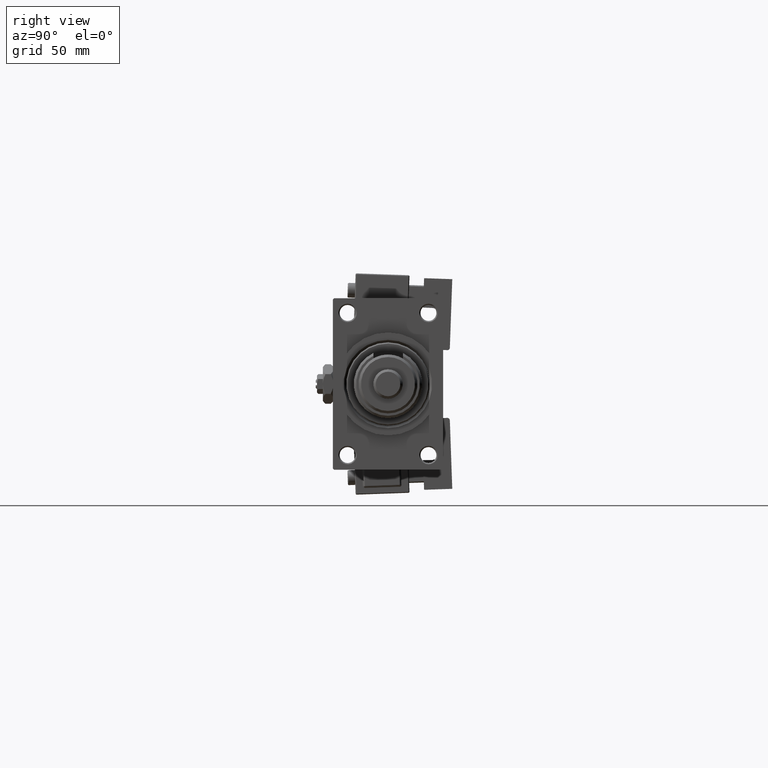
[diagram: clean part render]
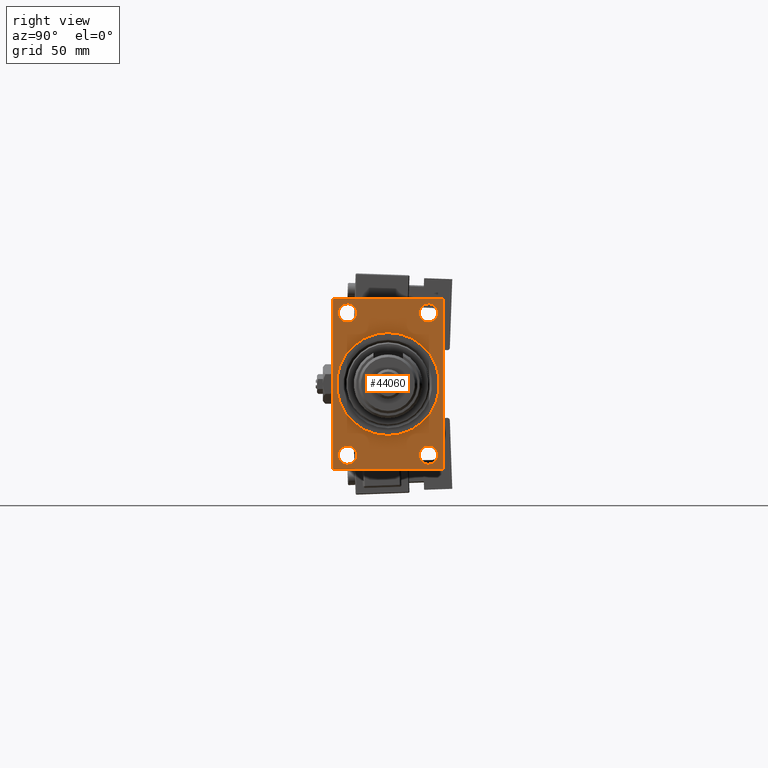
[diagram: same view with one face highlighted and labeled with its STEP entity id]
A machine part, right view. The second image highlights one B-rep face of the part: STEP entity #44060.
In plain terms, the highlighted planar face has unit normal (-1, 0, 0).
Its self-contained STEP definition (entity closure, byte-faithful):
#45 = VERTEX_POINT ( 'NONE', #42692 ) ;
#126 = FACE_OUTER_BOUND ( 'NONE', #37883, .T. ) ;
#403 = FACE_BOUND ( 'NONE', #11445, .T. ) ;
#657 = CARTESIAN_POINT ( 'NONE',  ( 173.0000000000000284, 16.50000000000000000, 32.75000000000017764 ) ) ;
#731 = CARTESIAN_POINT ( 'NONE',  ( 173.0000000000000284, -16.50000000000000000, -32.75000000000017053 ) ) ;
#1024 = CARTESIAN_POINT ( 'NONE',  ( 173.0000000000000284, -22.00000000000000355, -35.00000000000000000 ) ) ;
#1189 = EDGE_CURVE ( 'NONE', #2716, #21656, #5467, .T. ) ;
#1208 = VECTOR ( 'NONE', #15407, 1000.000000000000000 ) ;
#1745 = VECTOR ( 'NONE', #20632, 1000.000000000000114 ) ;
#2084 = VERTEX_POINT ( 'NONE', #47411 ) ;
#2329 = DIRECTION ( 'NONE',  ( 0.000000000000000000, 0.000000000000000000, 1.000000000000000000 ) ) ;
#2448 = DIRECTION ( 'NONE',  ( 0.000000000000000000, 0.000000000000000000, 1.000000000000000000 ) ) ;
#2705 = ORIENTED_EDGE ( 'NONE', *, *, #29073, .T. ) ;
#2716 = VERTEX_POINT ( 'NONE', #24474 ) ;
#3421 = CARTESIAN_POINT ( 'NONE',  ( 173.0000000000000284, 16.50000000000000000, -25.24999999999982592 ) ) ;
#3704 = VERTEX_POINT ( 'NONE', #33260 ) ;
#3827 = DIRECTION ( 'NONE',  ( 1.000000000000000000, 0.000000000000000000, 0.000000000000000000 ) ) ;
#3944 = EDGE_CURVE ( 'NONE', #32693, #45161, #32147, .T. ) ;
#4032 = ORIENTED_EDGE ( 'NONE', *, *, #1189, .F. ) ;
#4407 = DIRECTION ( 'NONE',  ( 0.000000000000000000, 0.000000000000000000, 1.000000000000000000 ) ) ;
#4574 = EDGE_CURVE ( 'NONE', #29594, #3704, #37989, .T. ) ;
#4580 = ORIENTED_EDGE ( 'NONE', *, *, #4574, .T. ) ;
#5189 = CIRCLE ( 'NONE', #16686, 3.750000000000169642 ) ;
#5467 = CIRCLE ( 'NONE', #17707, 21.00000000000000000 ) ;
#7507 = ORIENTED_EDGE ( 'NONE', *, *, #3944, .F. ) ;
#7689 = EDGE_CURVE ( 'NONE', #21656, #2716, #17992, .T. ) ;
#7708 = CARTESIAN_POINT ( 'NONE',  ( 173.0000000000000284, -16.50000000000000000, -28.99999999999999289 ) ) ;
#7754 = CARTESIAN_POINT ( 'NONE',  ( 173.0000000000000284, 21.99999999999999645, 35.00000000000000000 ) ) ;
#7806 = VERTEX_POINT ( 'NONE', #12409 ) ;
#8326 = DIRECTION ( 'NONE',  ( -1.000000000000000000, -0.000000000000000000, -0.000000000000000000 ) ) ;
#8497 = CARTESIAN_POINT ( 'NONE',  ( 173.0000000000000284, 0.000000000000000000, 0.000000000000000000 ) ) ;
#8528 = EDGE_CURVE ( 'NONE', #16770, #52942, #45169, .T. ) ;
#8622 = PLANE ( 'NONE',  #23707 ) ;
#10130 = CARTESIAN_POINT ( 'NONE',  ( 173.0000000000000284, 16.50000000000000000, -28.99999999999999289 ) ) ;
#10559 = VECTOR ( 'NONE', #10877, 1000.000000000000000 ) ;
#10877 = DIRECTION ( 'NONE',  ( 0.000000000000000000, 0.000000000000000000, -1.000000000000000000 ) ) ;
#11194 = EDGE_CURVE ( 'NONE', #32693, #48495, #45574, .T. ) ;
#11445 = EDGE_LOOP ( 'NONE', ( #17897, #48265 ) ) ;
#11610 = DIRECTION ( 'NONE',  ( 0.000000000000000000, 0.000000000000000000, 1.000000000000000000 ) ) ;
#11757 = VECTOR ( 'NONE', #30374, 1000.000000000000114 ) ;
#12177 = FACE_BOUND ( 'NONE', #21536, .T. ) ;
#12409 = CARTESIAN_POINT ( 'NONE',  ( 173.0000000000000284, 16.50000000000000000, -32.75000000000017053 ) ) ;
#12448 = DIRECTION ( 'NONE',  ( 0.000000000000000000, 0.000000000000000000, 1.000000000000000000 ) ) ;
#12914 = EDGE_CURVE ( 'NONE', #26151, #45, #50470, .T. ) ;
#12970 = CARTESIAN_POINT ( 'NONE',  ( 173.0000000000000284, 22.49999999999999645, -34.50000000000000000 ) ) ;
#14213 = ORIENTED_EDGE ( 'NONE', *, *, #40171, .T. ) ;
#14347 = AXIS2_PLACEMENT_3D ( 'NONE', #37105, #8326, #50544 ) ;
#14506 = AXIS2_PLACEMENT_3D ( 'NONE', #22868, #34692, #18758 ) ;
#14624 = CARTESIAN_POINT ( 'NONE',  ( 173.0000000000000284, 22.49999999999999645, 35.00000000000000000 ) ) ;
#14776 = DIRECTION ( 'NONE',  ( -1.000000000000000000, -0.000000000000000000, -0.000000000000000000 ) ) ;
#15407 = DIRECTION ( 'NONE',  ( 0.000000000000000000, -1.000000000000000000, 0.000000000000000000 ) ) ;
#15515 = EDGE_LOOP ( 'NONE', ( #36425, #48120 ) ) ;
#16686 = AXIS2_PLACEMENT_3D ( 'NONE', #23698, #40422, #2329 ) ;
#16770 = VERTEX_POINT ( 'NONE', #657 ) ;
#17074 = DIRECTION ( 'NONE',  ( -0.000000000000000000, 0.7071067811865279218, 0.7071067811865671127 ) ) ;
#17112 = DIRECTION ( 'NONE',  ( -0.000000000000000000, 0.000000000000000000, 1.000000000000000000 ) ) ;
#17317 = ORIENTED_EDGE ( 'NONE', *, *, #8528, .T. ) ;
#17707 = AXIS2_PLACEMENT_3D ( 'NONE', #8497, #3827, #50156 ) ;
#17897 = ORIENTED_EDGE ( 'NONE', *, *, #12914, .T. ) ;
#17992 = CIRCLE ( 'NONE', #14506, 21.00000000000000000 ) ;
#18595 = DIRECTION ( 'NONE',  ( -1.000000000000000000, -0.000000000000000000, -0.000000000000000000 ) ) ;
#18758 = DIRECTION ( 'NONE',  ( 0.000000000000000000, 0.000000000000000000, -1.000000000000000000 ) ) ;
#19811 = DIRECTION ( 'NONE',  ( 0.000000000000000000, 0.000000000000000000, -1.000000000000000000 ) ) ;
#20064 = ORIENTED_EDGE ( 'NONE', *, *, #35857, .T. ) ;
#20134 = FACE_BOUND ( 'NONE', #15515, .T. ) ;
#20632 = DIRECTION ( 'NONE',  ( 0.000000000000000000, -0.7071067811865474617, 0.7071067811865474617 ) ) ;
#20942 = DIRECTION ( 'NONE',  ( -1.000000000000000000, 0.000000000000000000, -0.000000000000000000 ) ) ;
#20953 = CARTESIAN_POINT ( 'NONE',  ( 173.0000000000000284, -22.50000000000000355, -34.50000000000000000 ) ) ;
#21536 = EDGE_LOOP ( 'NONE', ( #26421, #17317 ) ) ;
#21580 = VERTEX_POINT ( 'NONE', #20953 ) ;
#21656 = VERTEX_POINT ( 'NONE', #50837 ) ;
#22254 = EDGE_CURVE ( 'NONE', #22482, #21580, #32787, .T. ) ;
#22448 = CARTESIAN_POINT ( 'NONE',  ( 173.0000000000000284, -16.50000000000000000, 29.00000000000000711 ) ) ;
#22482 = VERTEX_POINT ( 'NONE', #26445 ) ;
#22674 = LINE ( 'NONE', #1024, #11757 ) ;
#22868 = CARTESIAN_POINT ( 'NONE',  ( 173.0000000000000284, 0.000000000000000000, 0.000000000000000000 ) ) ;
#23368 = CARTESIAN_POINT ( 'NONE',  ( 173.0000000000000284, 22.49999999999999645, -35.00000000000000000 ) ) ;
#23698 = CARTESIAN_POINT ( 'NONE',  ( 173.0000000000000284, 16.50000000000000000, 29.00000000000000355 ) ) ;
#23707 = AXIS2_PLACEMENT_3D ( 'NONE', #33853, #20942, #17112 ) ;
#23822 = AXIS2_PLACEMENT_3D ( 'NONE', #10130, #14776, #2448 ) ;
#24137 = VECTOR ( 'NONE', #17074, 1000.000000000000000 ) ;
#24288 = CARTESIAN_POINT ( 'NONE',  ( 173.0000000000000284, -22.50000000000000355, 35.00000000000000000 ) ) ;
#24289 = CARTESIAN_POINT ( 'NONE',  ( 173.0000000000000284, 21.99999999999999645, 35.00000000000000000 ) ) ;
#24474 = CARTESIAN_POINT ( 'NONE',  ( 173.0000000000000284, 0.000000000000000000, 21.00000000000000000 ) ) ;
#25441 = CARTESIAN_POINT ( 'NONE',  ( 173.0000000000000284, -22.00000000000001776, 35.00000000000000000 ) ) ;
#26151 = VERTEX_POINT ( 'NONE', #731 ) ;
#26421 = ORIENTED_EDGE ( 'NONE', *, *, #40043, .T. ) ;
#26445 = CARTESIAN_POINT ( 'NONE',  ( 173.0000000000000284, -22.50000000000000355, 34.50000000000000000 ) ) ;
#26768 = CARTESIAN_POINT ( 'NONE',  ( 173.0000000000000284, -21.99999999999998934, -35.00000000000000000 ) ) ;
#26829 = AXIS2_PLACEMENT_3D ( 'NONE', #7708, #37847, #4407 ) ;
#26947 = CARTESIAN_POINT ( 'NONE',  ( 173.0000000000000284, 22.00000000000002132, -35.00000000000000000 ) ) ;
#27660 = VECTOR ( 'NONE', #42500, 1000.000000000000000 ) ;
#28958 = CIRCLE ( 'NONE', #51711, 3.750000000000166533 ) ;
#28971 = ORIENTED_EDGE ( 'NONE', *, *, #11194, .T. ) ;
#29043 = VERTEX_POINT ( 'NONE', #25441 ) ;
#29073 = EDGE_CURVE ( 'NONE', #21580, #45161, #22674, .T. ) ;
#29171 = FACE_BOUND ( 'NONE', #41387, .T. ) ;
#29594 = VERTEX_POINT ( 'NONE', #43979 ) ;
#30374 = DIRECTION ( 'NONE',  ( 0.000000000000000000, 0.7071067811865474617, -0.7071067811865474617 ) ) ;
#30757 = ORIENTED_EDGE ( 'NONE', *, *, #43073, .F. ) ;
#31925 = ORIENTED_EDGE ( 'NONE', *, *, #22254, .T. ) ;
#32041 = DIRECTION ( 'NONE',  ( 0.000000000000000000, 0.000000000000000000, 1.000000000000000000 ) ) ;
#32147 = LINE ( 'NONE', #23368, #1208 ) ;
#32469 = CARTESIAN_POINT ( 'NONE',  ( 173.0000000000000284, 16.50000000000000000, 29.00000000000000355 ) ) ;
#32693 = VERTEX_POINT ( 'NONE', #26947 ) ;
#32718 = LINE ( 'NONE', #7754, #1745 ) ;
#32787 = LINE ( 'NONE', #24288, #10559 ) ;
#33260 = CARTESIAN_POINT ( 'NONE',  ( 173.0000000000000284, -16.50000000000000000, 25.24999999999984368 ) ) ;
#33853 = CARTESIAN_POINT ( 'NONE',  ( 173.0000000000000284, 0.000000000000000000, 0.000000000000000000 ) ) ;
#34288 = CARTESIAN_POINT ( 'NONE',  ( 173.0000000000000284, 16.50000000000000000, -28.99999999999999289 ) ) ;
#34692 = DIRECTION ( 'NONE',  ( 1.000000000000000000, 0.000000000000000000, 0.000000000000000000 ) ) ;
#35857 = EDGE_CURVE ( 'NONE', #38708, #29043, #38387, .T. ) ;
#36341 = ORIENTED_EDGE ( 'NONE', *, *, #39207, .T. ) ;
#36425 = ORIENTED_EDGE ( 'NONE', *, *, #45955, .T. ) ;
#37105 = CARTESIAN_POINT ( 'NONE',  ( 173.0000000000000284, -16.50000000000000000, 29.00000000000000711 ) ) ;
#37667 = VECTOR ( 'NONE', #19811, 1000.000000000000000 ) ;
#37847 = DIRECTION ( 'NONE',  ( -1.000000000000000000, -0.000000000000000000, -0.000000000000000000 ) ) ;
#37883 = EDGE_LOOP ( 'NONE', ( #31925, #2705, #7507, #28971, #30757, #36341, #20064, #14213 ) ) ;
#37989 = CIRCLE ( 'NONE', #14347, 3.750000000000166533 ) ;
#38387 = LINE ( 'NONE', #42220, #27660 ) ;
#38466 = DIRECTION ( 'NONE',  ( -0.000000000000000000, -0.7071067811865279218, -0.7071067811865671127 ) ) ;
#38708 = VERTEX_POINT ( 'NONE', #24289 ) ;
#38838 = ORIENTED_EDGE ( 'NONE', *, *, #7689, .F. ) ;
#39207 = EDGE_CURVE ( 'NONE', #2084, #38708, #32718, .T. ) ;
#39392 = ORIENTED_EDGE ( 'NONE', *, *, #53476, .T. ) ;
#39788 = AXIS2_PLACEMENT_3D ( 'NONE', #22448, #18595, #32041 ) ;
#40043 = EDGE_CURVE ( 'NONE', #52942, #16770, #5189, .T. ) ;
#40171 = EDGE_CURVE ( 'NONE', #29043, #22482, #44786, .T. ) ;
#40343 = CIRCLE ( 'NONE', #47343, 3.750000000000166533 ) ;
#40422 = DIRECTION ( 'NONE',  ( -1.000000000000000000, -0.000000000000000000, -0.000000000000000000 ) ) ;
#40547 = EDGE_CURVE ( 'NONE', #48882, #7806, #40343, .T. ) ;
#41369 = CARTESIAN_POINT ( 'NONE',  ( 173.0000000000000284, 16.50000000000000000, 25.24999999999983658 ) ) ;
#41387 = EDGE_LOOP ( 'NONE', ( #39392, #4580 ) ) ;
#42063 = CARTESIAN_POINT ( 'NONE',  ( 173.0000000000000284, -16.50000000000000000, -28.99999999999999289 ) ) ;
#42220 = CARTESIAN_POINT ( 'NONE',  ( 173.0000000000000284, 22.49999999999999645, 35.00000000000000000 ) ) ;
#42500 = DIRECTION ( 'NONE',  ( 0.000000000000000000, -1.000000000000000000, 0.000000000000000000 ) ) ;
#42692 = CARTESIAN_POINT ( 'NONE',  ( 173.0000000000000284, -16.50000000000000000, -25.24999999999982592 ) ) ;
#42834 = VECTOR ( 'NONE', #38466, 1000.000000000000000 ) ;
#43073 = EDGE_CURVE ( 'NONE', #2084, #48495, #52454, .T. ) ;
#43300 = CIRCLE ( 'NONE', #39788, 3.750000000000166533 ) ;
#43979 = CARTESIAN_POINT ( 'NONE',  ( 173.0000000000000284, -16.50000000000000000, 32.75000000000017764 ) ) ;
#44060 = ADVANCED_FACE ( 'NONE', ( #29171, #403, #20134, #12177, #50289, #126 ), #8622, .F. ) ;
#44191 = EDGE_CURVE ( 'NONE', #45, #26151, #28958, .T. ) ;
#44294 = AXIS2_PLACEMENT_3D ( 'NONE', #32469, #48919, #11610 ) ;
#44786 = LINE ( 'NONE', #53297, #42834 ) ;
#45161 = VERTEX_POINT ( 'NONE', #26768 ) ;
#45169 = CIRCLE ( 'NONE', #44294, 3.750000000000169642 ) ;
#45574 = LINE ( 'NONE', #12970, #24137 ) ;
#45887 = DIRECTION ( 'NONE',  ( -1.000000000000000000, -0.000000000000000000, -0.000000000000000000 ) ) ;
#45955 = EDGE_CURVE ( 'NONE', #7806, #48882, #47454, .T. ) ;
#46070 = DIRECTION ( 'NONE',  ( 0.000000000000000000, 0.000000000000000000, 1.000000000000000000 ) ) ;
#46900 = DIRECTION ( 'NONE',  ( -1.000000000000000000, -0.000000000000000000, -0.000000000000000000 ) ) ;
#47343 = AXIS2_PLACEMENT_3D ( 'NONE', #34288, #46900, #46070 ) ;
#47411 = CARTESIAN_POINT ( 'NONE',  ( 173.0000000000000284, 22.49999999999999645, 34.50000000000000000 ) ) ;
#47454 = CIRCLE ( 'NONE', #23822, 3.750000000000166533 ) ;
#47669 = CARTESIAN_POINT ( 'NONE',  ( 173.0000000000000284, 22.49999999999999645, -34.50000000000000000 ) ) ;
#48120 = ORIENTED_EDGE ( 'NONE', *, *, #40547, .T. ) ;
#48265 = ORIENTED_EDGE ( 'NONE', *, *, #44191, .T. ) ;
#48495 = VERTEX_POINT ( 'NONE', #47669 ) ;
#48882 = VERTEX_POINT ( 'NONE', #3421 ) ;
#48919 = DIRECTION ( 'NONE',  ( -1.000000000000000000, -0.000000000000000000, -0.000000000000000000 ) ) ;
#50156 = DIRECTION ( 'NONE',  ( 0.000000000000000000, 0.000000000000000000, -1.000000000000000000 ) ) ;
#50289 = FACE_BOUND ( 'NONE', #53723, .T. ) ;
#50470 = CIRCLE ( 'NONE', #26829, 3.750000000000166533 ) ;
#50544 = DIRECTION ( 'NONE',  ( 0.000000000000000000, 0.000000000000000000, 1.000000000000000000 ) ) ;
#50837 = CARTESIAN_POINT ( 'NONE',  ( 173.0000000000000284, 2.571758278209441661E-15, -21.00000000000000000 ) ) ;
#51711 = AXIS2_PLACEMENT_3D ( 'NONE', #42063, #45887, #12448 ) ;
#52454 = LINE ( 'NONE', #14624, #37667 ) ;
#52942 = VERTEX_POINT ( 'NONE', #41369 ) ;
#53297 = CARTESIAN_POINT ( 'NONE',  ( 173.0000000000000284, -22.50000000000000355, 34.50000000000000000 ) ) ;
#53476 = EDGE_CURVE ( 'NONE', #3704, #29594, #43300, .T. ) ;
#53723 = EDGE_LOOP ( 'NONE', ( #4032, #38838 ) ) ;